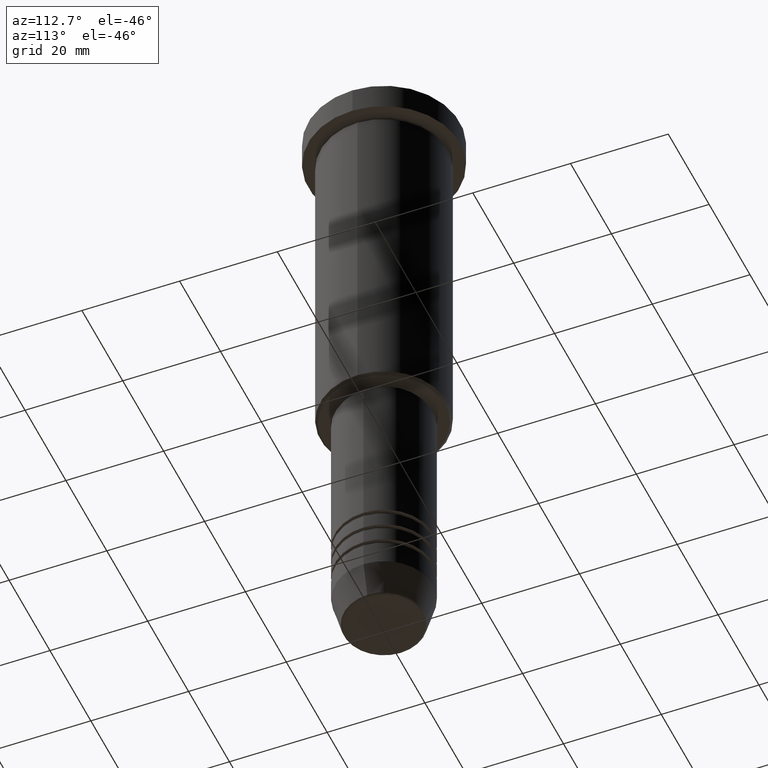
[diagram: clean part render]
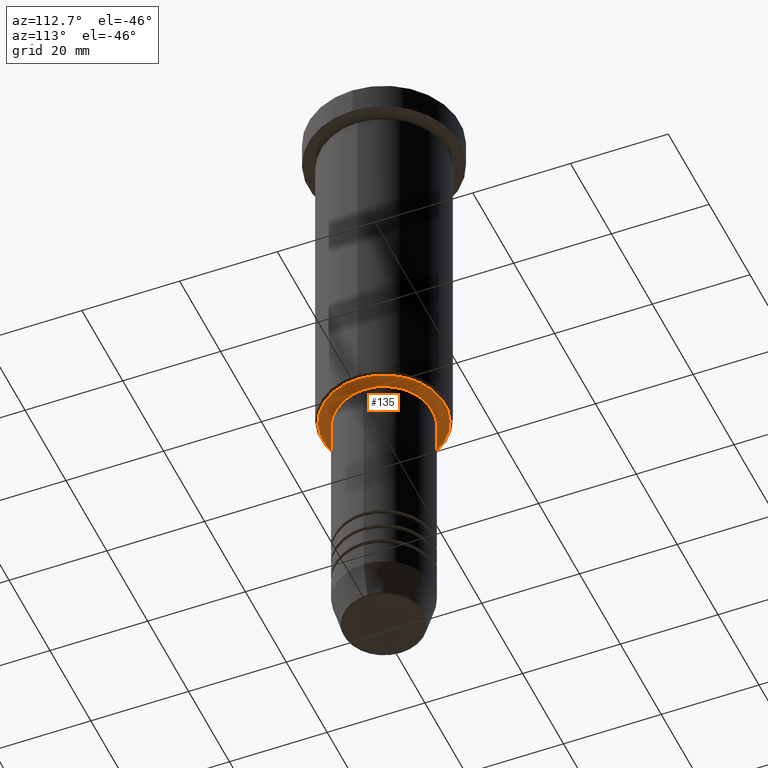
[diagram: same view with one face highlighted and labeled with its STEP entity id]
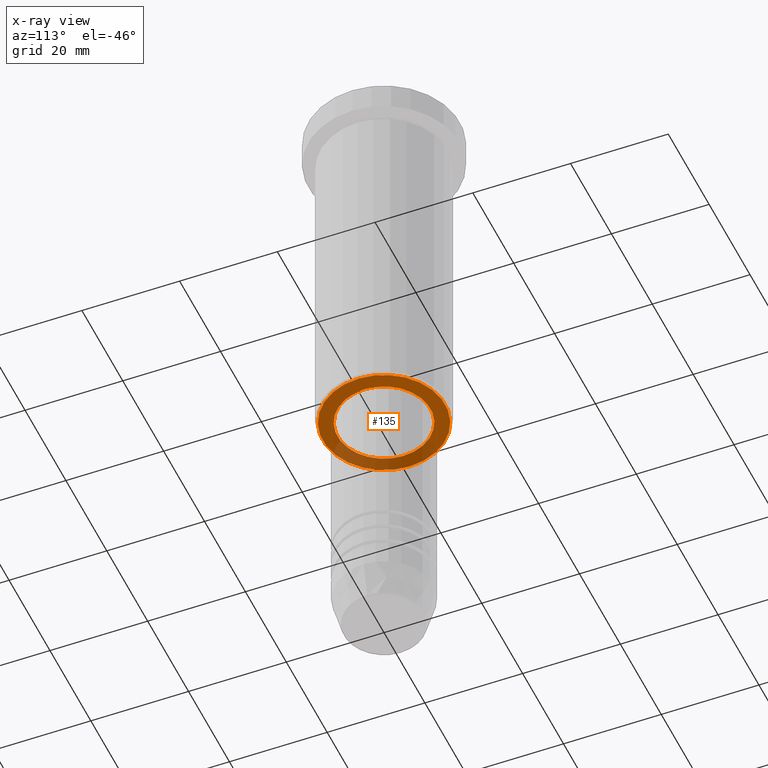
[diagram: x-ray of the same camera — body ghosted, the highlighted face saturated]
A machine part, auxiliary view. The second image highlights one B-rep face of the part: STEP entity #135.
The next image is the same camera in x-ray: the body ghosted, the highlighted face saturated — about 31% of this face is hidden behind the body in this view.
In plain terms, the highlighted planar face has unit normal (0, 0, -1).
Its self-contained STEP definition (entity closure, byte-faithful):
#20 = CARTESIAN_POINT ( 'NONE',  ( 9.500000000000001776, 0.000000000000000000, -75.99999999999998579 ) ) ;
#21 = EDGE_LOOP ( 'NONE', ( #361, #533 ) ) ;
#62 = EDGE_CURVE ( 'NONE', #464, #65, #210, .T. ) ;
#65 = VERTEX_POINT ( 'NONE', #972 ) ;
#105 = CARTESIAN_POINT ( 'NONE',  ( 0.000000000000000000, 0.000000000000000000, -75.99999999999998579 ) ) ;
#115 = ORIENTED_EDGE ( 'NONE', *, *, #540, .T. ) ;
#134 = CIRCLE ( 'NONE', #527, 12.49999999999998401 ) ;
#135 = ADVANCED_FACE ( 'NONE', ( #447, #351 ), #275, .T. ) ;
#210 = CIRCLE ( 'NONE', #1028, 12.49999999999998401 ) ;
#269 = DIRECTION ( 'NONE',  ( -1.000000000000000000, 0.000000000000000000, 0.000000000000000000 ) ) ;
#275 = PLANE ( 'NONE',  #483 ) ;
#351 = FACE_BOUND ( 'NONE', #21, .T. ) ;
#361 = ORIENTED_EDGE ( 'NONE', *, *, #973, .T. ) ;
#447 = FACE_OUTER_BOUND ( 'NONE', #579, .T. ) ;
#464 = VERTEX_POINT ( 'NONE', #903 ) ;
#474 = CARTESIAN_POINT ( 'NONE',  ( -9.500000000000001776, 1.163414459189985682E-15, -75.99999999999998579 ) ) ;
#475 = DIRECTION ( 'NONE',  ( -1.000000000000000000, 0.000000000000000000, 0.000000000000000000 ) ) ;
#477 = DIRECTION ( 'NONE',  ( -0.000000000000000000, -0.000000000000000000, 1.000000000000000000 ) ) ;
#483 = AXIS2_PLACEMENT_3D ( 'NONE', #711, #1003, #1166 ) ;
#527 = AXIS2_PLACEMENT_3D ( 'NONE', #657, #536, #269 ) ;
#533 = ORIENTED_EDGE ( 'NONE', *, *, #632, .T. ) ;
#536 = DIRECTION ( 'NONE',  ( 0.000000000000000000, 0.000000000000000000, -1.000000000000000000 ) ) ;
#540 = EDGE_CURVE ( 'NONE', #65, #464, #134, .T. ) ;
#579 = EDGE_LOOP ( 'NONE', ( #1034, #115 ) ) ;
#584 = DIRECTION ( 'NONE',  ( -0.000000000000000000, -0.000000000000000000, 1.000000000000000000 ) ) ;
#604 = CIRCLE ( 'NONE', #745, 9.500000000000001776 ) ;
#632 = EDGE_CURVE ( 'NONE', #835, #1181, #706, .T. ) ;
#657 = CARTESIAN_POINT ( 'NONE',  ( 0.000000000000000000, 0.000000000000000000, -75.99999999999998579 ) ) ;
#706 = CIRCLE ( 'NONE', #951, 9.500000000000001776 ) ;
#711 = CARTESIAN_POINT ( 'NONE',  ( 0.000000000000000000, 13.00000000000000000, -75.99999999999998579 ) ) ;
#745 = AXIS2_PLACEMENT_3D ( 'NONE', #916, #477, #894 ) ;
#835 = VERTEX_POINT ( 'NONE', #474 ) ;
#894 = DIRECTION ( 'NONE',  ( 1.000000000000000000, 0.000000000000000000, 0.000000000000000000 ) ) ;
#903 = CARTESIAN_POINT ( 'NONE',  ( 12.49999999999998401, 0.000000000000000000, -75.99999999999998579 ) ) ;
#914 = DIRECTION ( 'NONE',  ( 0.000000000000000000, 0.000000000000000000, -1.000000000000000000 ) ) ;
#916 = CARTESIAN_POINT ( 'NONE',  ( 0.000000000000000000, 0.000000000000000000, -75.99999999999998579 ) ) ;
#951 = AXIS2_PLACEMENT_3D ( 'NONE', #105, #584, #1013 ) ;
#972 = CARTESIAN_POINT ( 'NONE',  ( -12.49999999999998401, 1.561424668912874322E-15, -75.99999999999998579 ) ) ;
#973 = EDGE_CURVE ( 'NONE', #1181, #835, #604, .T. ) ;
#1003 = DIRECTION ( 'NONE',  ( 0.000000000000000000, 0.000000000000000000, -1.000000000000000000 ) ) ;
#1013 = DIRECTION ( 'NONE',  ( 1.000000000000000000, 0.000000000000000000, 0.000000000000000000 ) ) ;
#1028 = AXIS2_PLACEMENT_3D ( 'NONE', #1171, #914, #475 ) ;
#1034 = ORIENTED_EDGE ( 'NONE', *, *, #62, .T. ) ;
#1166 = DIRECTION ( 'NONE',  ( -1.000000000000000000, 0.000000000000000000, -0.000000000000000000 ) ) ;
#1171 = CARTESIAN_POINT ( 'NONE',  ( 0.000000000000000000, 0.000000000000000000, -75.99999999999998579 ) ) ;
#1181 = VERTEX_POINT ( 'NONE', #20 ) ;